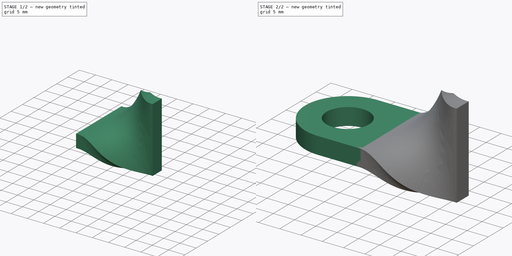
[diagram: build sequence overview — one tinted view per stage of 2, left to right]
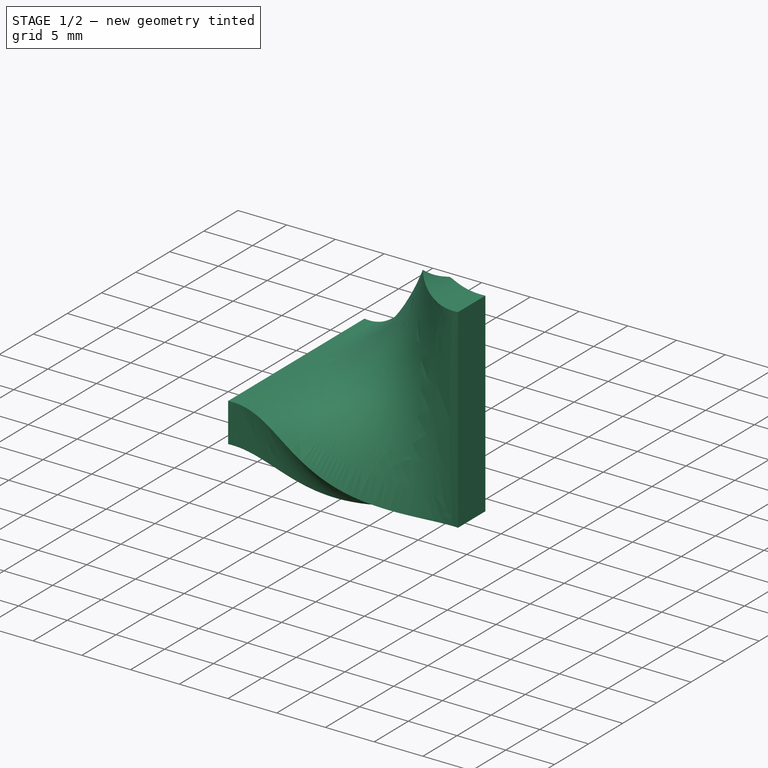
[diagram: stage 1 of 2 — iso view after this stage's code; geometry added in this stage tinted green]
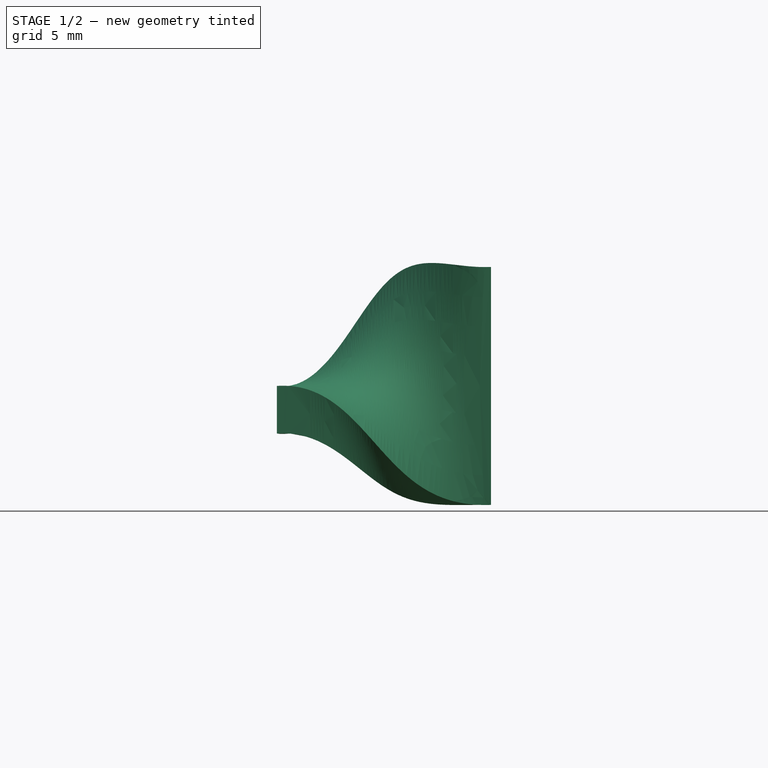
[diagram: stage 1 of 2 — front view after this stage's code; geometry added in this stage tinted green]
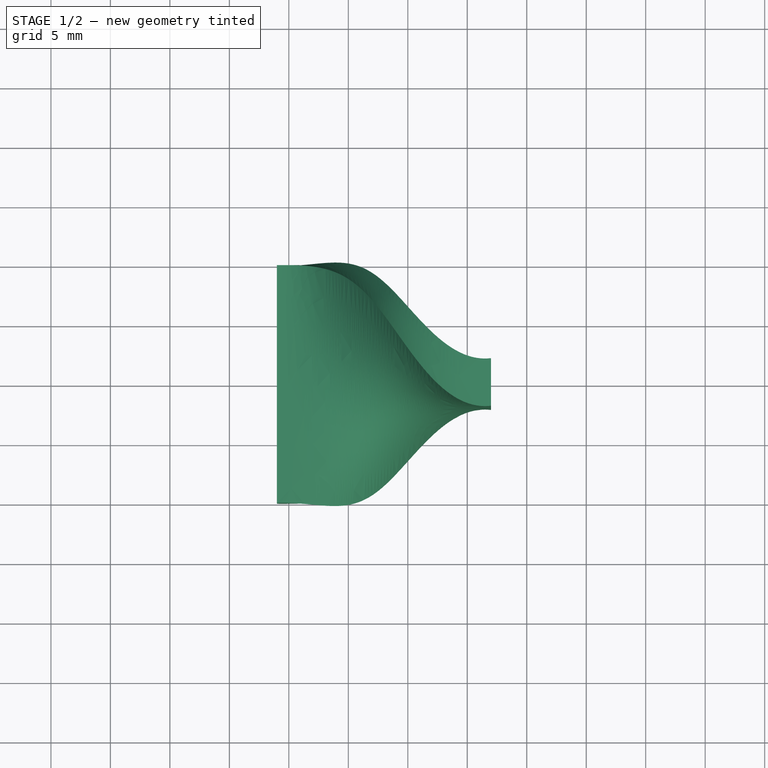
[diagram: stage 1 of 2 — top view after this stage's code; geometry added in this stage tinted green]
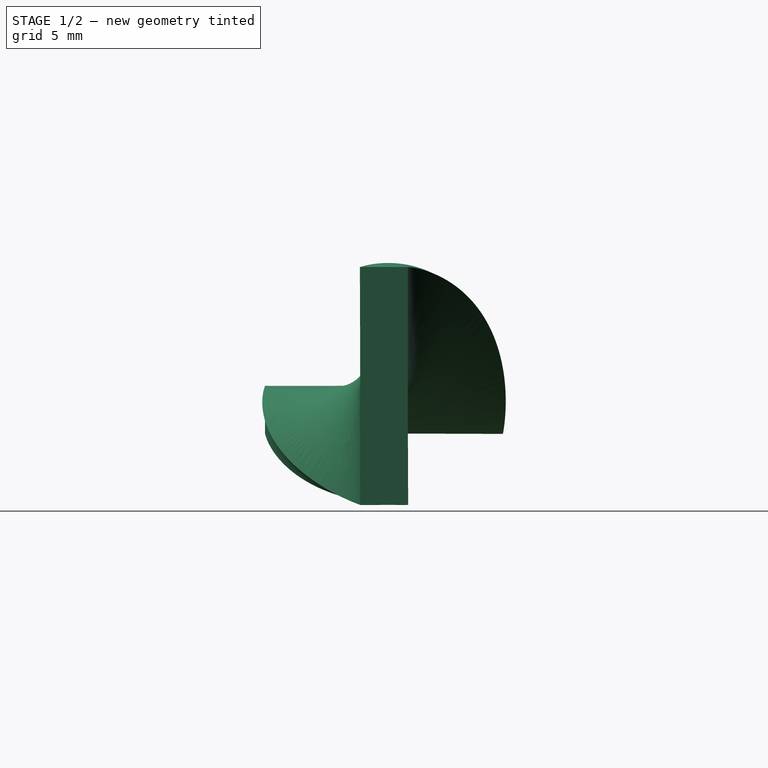
[diagram: stage 1 of 2 — right view after this stage's code; geometry added in this stage tinted green]
FCSTD DOCUMENT  (FreeCAD 0.21R33771 (Git))
Label: kruchenaja_petlja
License: All rights reserved
LicenseURL: https://en.wikipedia.org/wiki/All_rights_reserved
objects: Part::Feature×6, Sketcher::SketchObject×1, PartDesign::Pad×1, PartDesign::Body×1, Part::Loft×1
note: 11 computed .brp shape members not serialized (recipe doc carries the construction recipe); baked Part::Feature solids carry a one-line shape summary decoded from their .brp

FEATURE [PartDesign::Body] Body
  Group = -> [Sketch,Pad]
  Origin = -> Origin
  Tip = -> Pad
FEATURE [Part::Feature] Pad001
  Placement = pos=(36,0,2) rot=(0,-0.707107,-0.707107;3.14159rad)
  shape: bbox 20 x 4 x 20 mm, 7 faces (baked)
FEATURE [Part::Feature] Pad002  label="Left2"
  shape: bbox 2e-07 x 20 x 4 mm, 1 faces, 0 solids (baked)
FEATURE [Part::Feature] Pad003  label="Right1"
  Placement = pos=(36,0,2) rot=(0,0.707107,0.707107;3.14159rad)
  shape: bbox 2e-07 x 4 x 20 mm, 1 faces, 0 solids (baked)
FEATURE [Part::Feature] Pad004  label="Left1"
  Placement = pos=(-1,0,0) rot=(0,0,1;0rad)
  shape: bbox 2e-07 x 20 x 4 mm, 1 faces, 0 solids (baked)
FEATURE [Part::Feature] Pad005  label="Right2"
  Placement = pos=(37,0,2) rot=(0,0.707107,0.707107;3.14159rad)
  shape: bbox 2e-07 x 4 x 20 mm, 1 faces, 0 solids (baked)
FEATURE [Part::Feature] Pad006  label="Middle"
  Placement = pos=(28,0,2) rot=(0,-0.92388,-0.382683;3.14159rad)
  shape: bbox 2e-07 x 16.97 x 16.97 mm, 1 faces, 0 solids (baked)
FEATURE [Part::Loft] Loft
  Closed = false
  MaxDegree = 5
  Ruled = false
  Sections = -> [Pad004,Pad002,Pad006,Pad003,Pad005]
  Solid = true
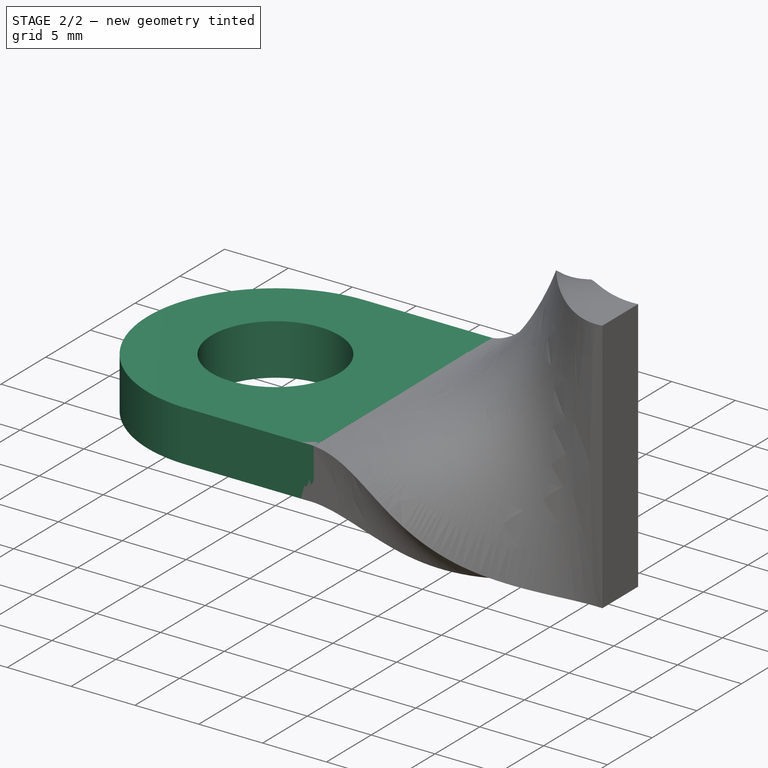
[diagram: stage 2 of 2 — iso view after this stage's code; geometry added in this stage tinted green]
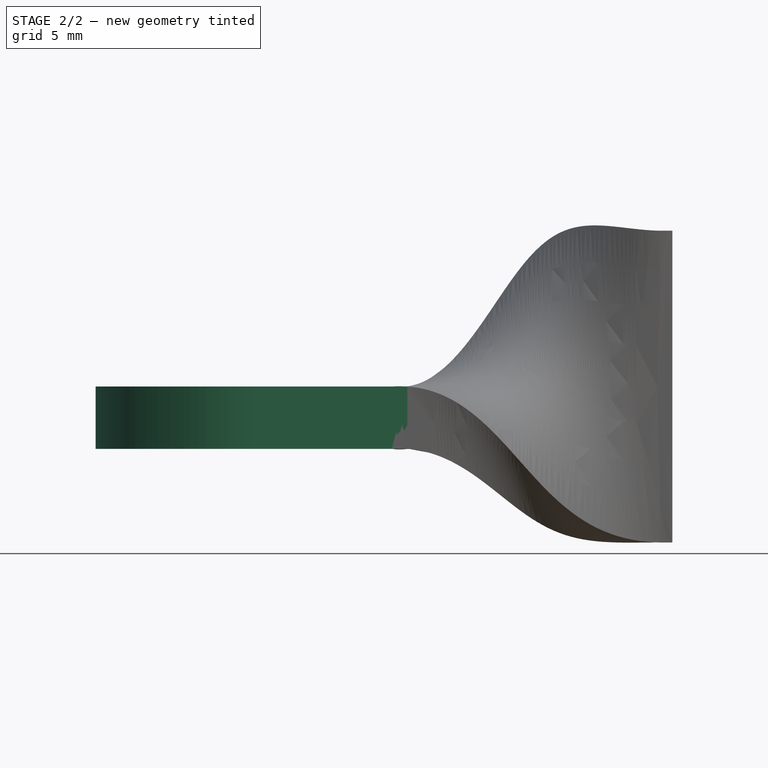
[diagram: stage 2 of 2 — front view after this stage's code; geometry added in this stage tinted green]
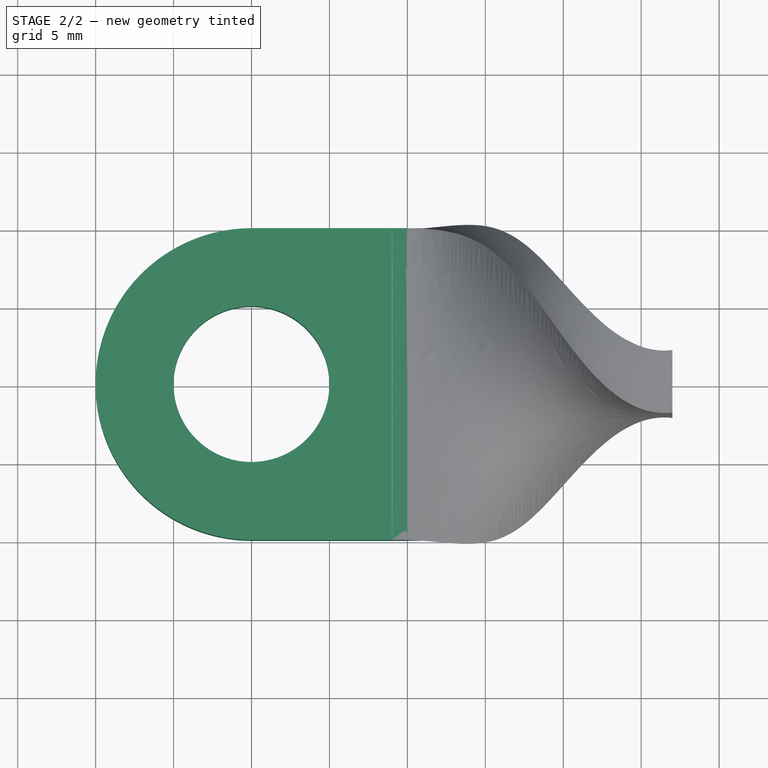
[diagram: stage 2 of 2 — top view after this stage's code; geometry added in this stage tinted green]
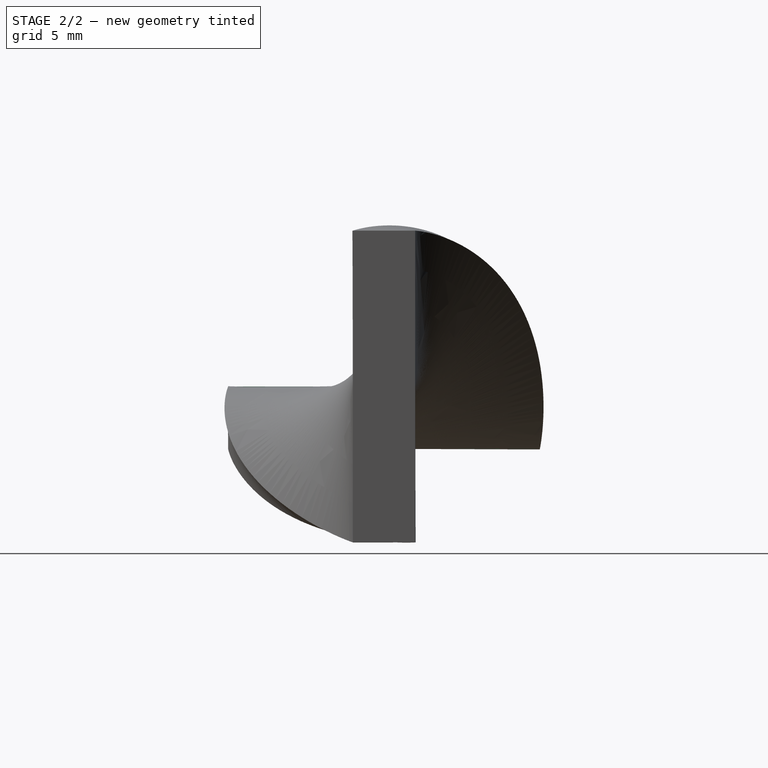
[diagram: stage 2 of 2 — right view after this stage's code; geometry added in this stage tinted green]
FEATURE [Sketcher::SketchObject] Sketch
  FullyConstrained = true
  MapMode = 5
  Support = -> [XY_Plane]
  sketch-geometry (5):
    g0: Circle CenterX=0 CenterY=0 CenterZ=0 NormalX=0 NormalY=0 NormalZ=1 AngleXU=0 Radius=5
    g1: ArcOfCircle CenterX=0 CenterY=0 CenterZ=0 NormalX=0 NormalY=0 NormalZ=1 AngleXU=0 Radius=10 StartAngle=1.5708 EndAngle=4.71239
    g2: LineSegment StartX=6e-16 StartY=10 StartZ=0 EndX=10 EndY=10 EndZ=0
    g3: LineSegment StartX=10 StartY=10 StartZ=0 EndX=10 EndY=-10 EndZ=0
    g4: LineSegment StartX=10 StartY=-10 StartZ=0 EndX=-1.8e-15 EndY=-10 EndZ=0
  constraints (14):
    c: Coincident(g0,g-1)
    c: Radius(g0) = 5
    c: Coincident(g1,g0)
    c: PointOnObject(g1,g-2)
    c: PointOnObject(g1,g-2)
    c: Radius(g1) = 10
    c: Coincident(g2,g3)
    c: Coincident(g3,g4)
    c: Horizontal(g2)
    c: Horizontal(g4)
    c: Vertical(g3)
    c: Coincident(g2,g1)
    c: Coincident(g4,g1)
    c: DistanceX(g4,g4) = 10
FEATURE [PartDesign::Pad] Pad
  Direction = (0,0,1)
  Length = 4
  Length2 = 10
  Midplane = true
  Profile = -> Sketch
  ReferenceAxis = -> Sketch [N_Axis]
  Type = 0
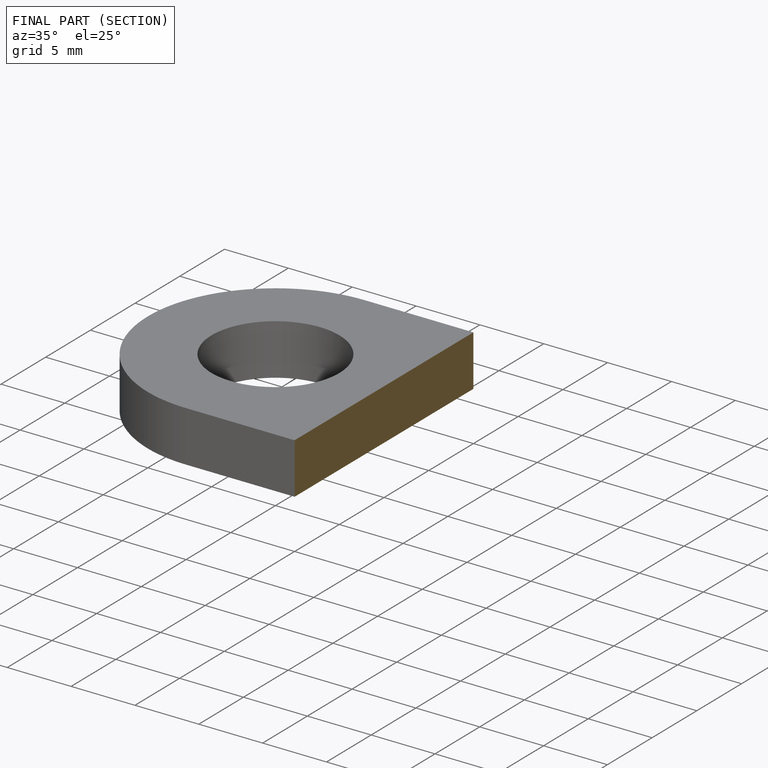
[diagram: finished part — half-section view (interior)]
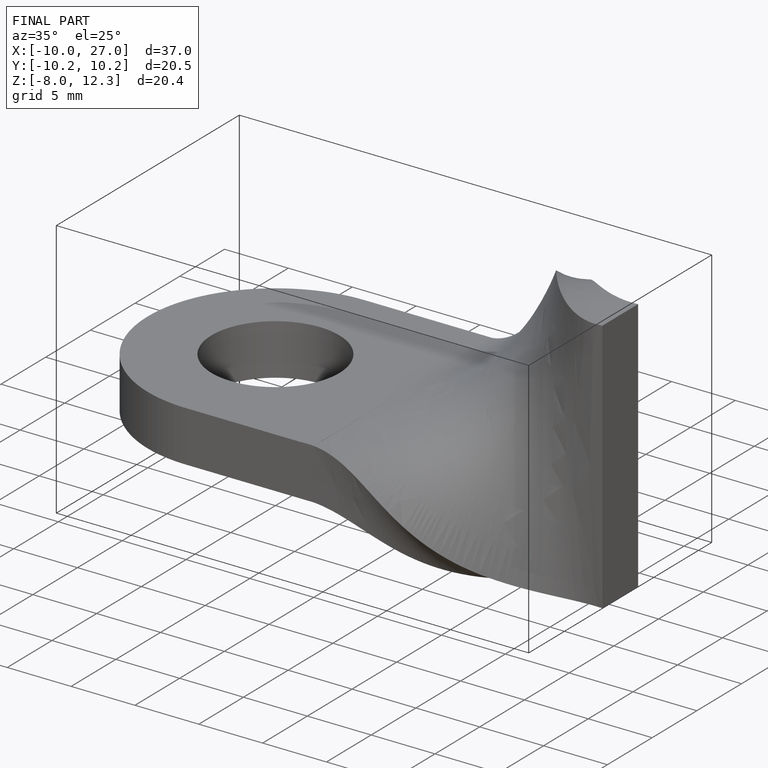
[diagram: finished part — iso view with bounding-box wireframe]
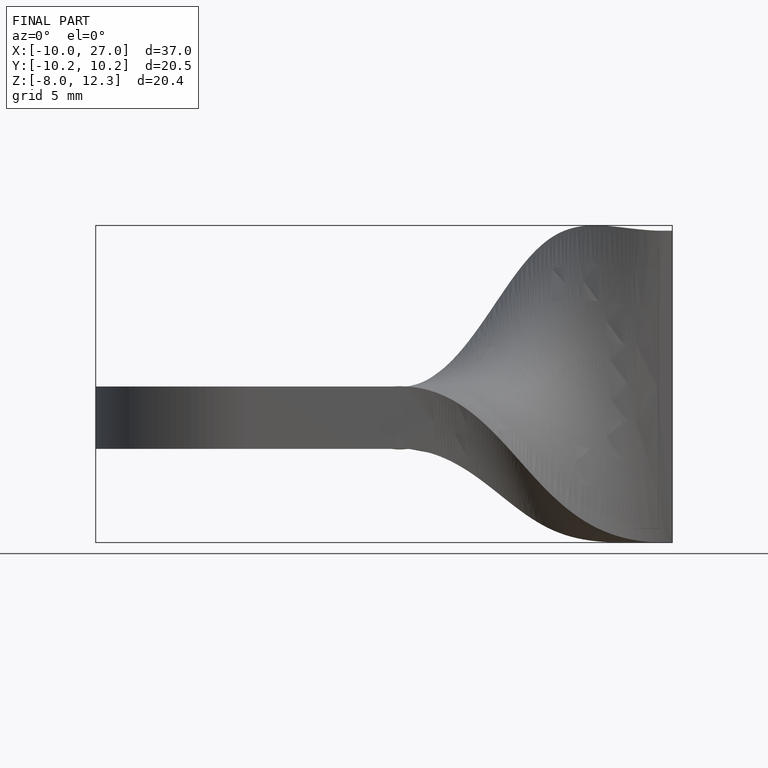
[diagram: finished part — front view with bounding-box wireframe]
